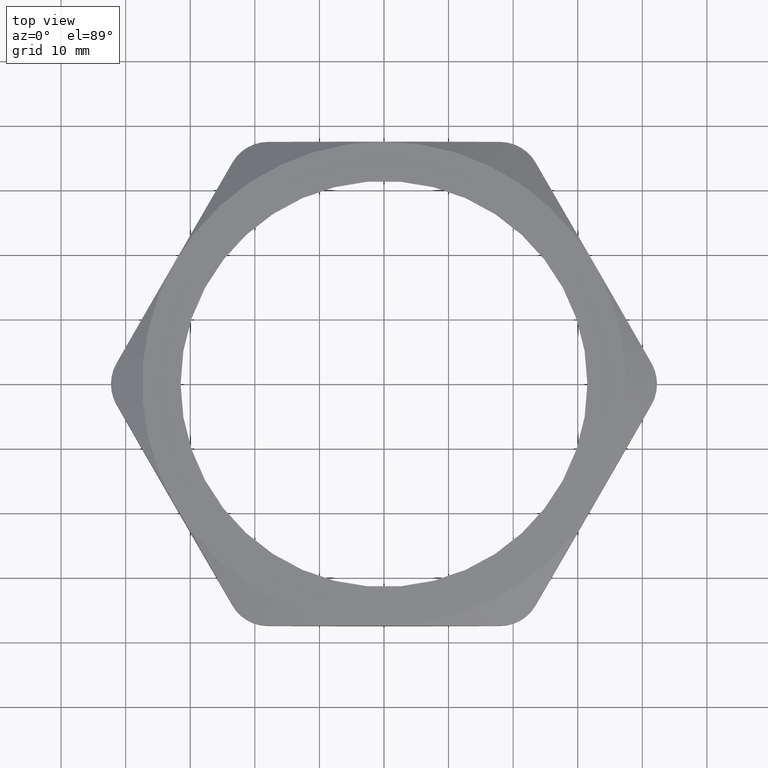
[diagram: clean part render]
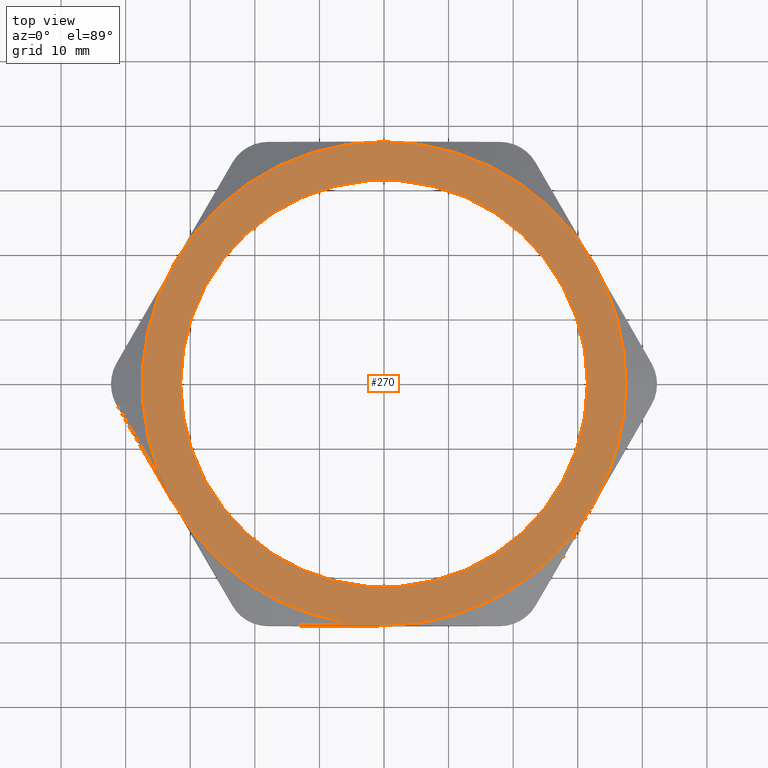
[diagram: same view with one face highlighted and labeled with its STEP entity id]
A machine part, top view. The second image highlights one B-rep face of the part: STEP entity #270.
In plain terms, the highlighted planar face has unit normal (0, 0, -1).
Its self-contained STEP definition (entity closure, byte-faithful):
#153 = VERTEX_POINT ( 'NONE', #1254 ) ;
#179 = VERTEX_POINT ( 'NONE', #1374 ) ;
#190 = VERTEX_POINT ( 'NONE', #1405 ) ;
#201 = VERTEX_POINT ( 'NONE', #1429 ) ;
#215 = VERTEX_POINT ( 'NONE', #1438 ) ;
#255 = ORIENTED_EDGE ( 'NONE', *, *, #256, .T. ) ;
#256 = EDGE_CURVE ( 'NONE', #201, #190, #1610, .T. ) ;
#257 = ORIENTED_EDGE ( 'NONE', *, *, #258, .T. ) ;
#258 = EDGE_CURVE ( 'NONE', #190, #179, #1601, .T. ) ;
#259 = ORIENTED_EDGE ( 'NONE', *, *, #260, .T. ) ;
#260 = EDGE_CURVE ( 'NONE', #179, #762, #1596, .T. ) ;
#261 = ORIENTED_EDGE ( 'NONE', *, *, #761, .T. ) ;
#262 = ORIENTED_EDGE ( 'NONE', *, *, #263, .T. ) ;
#263 = EDGE_CURVE ( 'NONE', #763, #215, #1591, .T. ) ;
#270 = ADVANCED_FACE ( 'NONE', ( #1636, #1635 ), #1634, .F. ) ;
#271 = EDGE_LOOP ( 'NONE', ( #272, #273 ) ) ;
#272 = ORIENTED_EDGE ( 'NONE', *, *, #654, .F. ) ;
#273 = ORIENTED_EDGE ( 'NONE', *, *, #274, .F. ) ;
#274 = EDGE_CURVE ( 'NONE', #650, #646, #1629, .T. ) ;
#275 = EDGE_LOOP ( 'NONE', ( #276, #278, #255, #257, #259, #261, #262 ) ) ;
#276 = ORIENTED_EDGE ( 'NONE', *, *, #277, .T. ) ;
#277 = EDGE_CURVE ( 'NONE', #215, #153, #1624, .T. ) ;
#278 = ORIENTED_EDGE ( 'NONE', *, *, #279, .T. ) ;
#279 = EDGE_CURVE ( 'NONE', #153, #201, #1619, .T. ) ;
#646 = VERTEX_POINT ( 'NONE', #2226 ) ;
#650 = VERTEX_POINT ( 'NONE', #2280 ) ;
#654 = EDGE_CURVE ( 'NONE', #646, #650, #2277, .T. ) ;
#761 = EDGE_CURVE ( 'NONE', #762, #763, #2478, .T. ) ;
#762 = VERTEX_POINT ( 'NONE', #2473 ) ;
#763 = VERTEX_POINT ( 'NONE', #2472 ) ;
#1254 = CARTESIAN_POINT ( 'NONE',  ( -1.277387470582047200, 0.7375000000000001600, 0.3100000000000000000 ) ) ;
#1374 = CARTESIAN_POINT ( 'NONE',  ( 1.277387470582046700, -0.7374999999999996000, 0.3100000000000000000 ) ) ;
#1405 = CARTESIAN_POINT ( 'NONE',  ( 0.0000000000000000000, -1.474999999999999900, 0.3100000000000000000 ) ) ;
#1429 = CARTESIAN_POINT ( 'NONE',  ( -1.277387470582047200, -0.7374999999999998200, 0.3100000000000000000 ) ) ;
#1438 = CARTESIAN_POINT ( 'NONE',  ( 0.0000000000000000000, 1.474999999999999900, 0.3100000000000000000 ) ) ;
#1587 = DIRECTION ( 'NONE',  ( 1.000000000000000000, 0.0000000000000000000, 0.0000000000000000000 ) ) ;
#1588 = DIRECTION ( 'NONE',  ( 0.0000000000000000000, 0.0000000000000000000, 1.000000000000000000 ) ) ;
#1589 = CARTESIAN_POINT ( 'NONE',  ( 0.0000000000000000000, 0.0000000000000000000, 0.3100000000000000000 ) ) ;
#1590 = AXIS2_PLACEMENT_3D ( 'NONE', #1589, #1588, #1587 ) ;
#1591 = CIRCLE ( 'NONE', #1590, 1.474999999999999900 ) ;
#1592 = DIRECTION ( 'NONE',  ( 1.000000000000000000, 0.0000000000000000000, 0.0000000000000000000 ) ) ;
#1593 = DIRECTION ( 'NONE',  ( 0.0000000000000000000, 0.0000000000000000000, 1.000000000000000000 ) ) ;
#1594 = CARTESIAN_POINT ( 'NONE',  ( 0.0000000000000000000, 0.0000000000000000000, 0.3100000000000000000 ) ) ;
#1595 = AXIS2_PLACEMENT_3D ( 'NONE', #1594, #1593, #1592 ) ;
#1596 = CIRCLE ( 'NONE', #1595, 1.474999999999999900 ) ;
#1597 = DIRECTION ( 'NONE',  ( 1.000000000000000000, 0.0000000000000000000, 0.0000000000000000000 ) ) ;
#1598 = DIRECTION ( 'NONE',  ( 0.0000000000000000000, 0.0000000000000000000, 1.000000000000000000 ) ) ;
#1599 = CARTESIAN_POINT ( 'NONE',  ( 0.0000000000000000000, 0.0000000000000000000, 0.3100000000000000000 ) ) ;
#1600 = AXIS2_PLACEMENT_3D ( 'NONE', #1599, #1598, #1597 ) ;
#1601 = CIRCLE ( 'NONE', #1600, 1.474999999999999900 ) ;
#1602 = DIRECTION ( 'NONE',  ( 1.000000000000000000, 0.0000000000000000000, 0.0000000000000000000 ) ) ;
#1603 = DIRECTION ( 'NONE',  ( 0.0000000000000000000, 0.0000000000000000000, 1.000000000000000000 ) ) ;
#1604 = CARTESIAN_POINT ( 'NONE',  ( 0.0000000000000000000, 0.0000000000000000000, 0.3100000000000000000 ) ) ;
#1605 = AXIS2_PLACEMENT_3D ( 'NONE', #1604, #1603, #1602 ) ;
#1610 = CIRCLE ( 'NONE', #1605, 1.474999999999999900 ) ;
#1615 = DIRECTION ( 'NONE',  ( 1.000000000000000000, 0.0000000000000000000, 0.0000000000000000000 ) ) ;
#1616 = DIRECTION ( 'NONE',  ( 0.0000000000000000000, 0.0000000000000000000, 1.000000000000000000 ) ) ;
#1617 = CARTESIAN_POINT ( 'NONE',  ( 0.0000000000000000000, 0.0000000000000000000, 0.3100000000000000000 ) ) ;
#1618 = AXIS2_PLACEMENT_3D ( 'NONE', #1617, #1616, #1615 ) ;
#1619 = CIRCLE ( 'NONE', #1618, 1.474999999999999900 ) ;
#1620 = DIRECTION ( 'NONE',  ( 1.000000000000000000, 0.0000000000000000000, 0.0000000000000000000 ) ) ;
#1621 = DIRECTION ( 'NONE',  ( 0.0000000000000000000, 0.0000000000000000000, 1.000000000000000000 ) ) ;
#1622 = CARTESIAN_POINT ( 'NONE',  ( 0.0000000000000000000, 0.0000000000000000000, 0.3100000000000000000 ) ) ;
#1623 = AXIS2_PLACEMENT_3D ( 'NONE', #1622, #1621, #1620 ) ;
#1624 = CIRCLE ( 'NONE', #1623, 1.474999999999999900 ) ;
#1625 = DIRECTION ( 'NONE',  ( 1.000000000000000000, 0.0000000000000000000, 0.0000000000000000000 ) ) ;
#1626 = DIRECTION ( 'NONE',  ( 0.0000000000000000000, 0.0000000000000000000, 1.000000000000000000 ) ) ;
#1627 = CARTESIAN_POINT ( 'NONE',  ( 0.0000000000000000000, 0.0000000000000000000, 0.3100000000000000000 ) ) ;
#1628 = AXIS2_PLACEMENT_3D ( 'NONE', #1627, #1626, #1625 ) ;
#1629 = CIRCLE ( 'NONE', #1628, 1.240000000000000000 ) ;
#1630 = DIRECTION ( 'NONE',  ( -1.000000000000000000, 0.0000000000000000000, 0.0000000000000000000 ) ) ;
#1631 = DIRECTION ( 'NONE',  ( 0.0000000000000000000, 0.0000000000000000000, -1.000000000000000000 ) ) ;
#1632 = CARTESIAN_POINT ( 'NONE',  ( -0.8515916470546977000, 1.474999999999999900, 0.3100000000000000000 ) ) ;
#1633 = AXIS2_PLACEMENT_3D ( 'NONE', #1632, #1631, #1630 ) ;
#1634 = PLANE ( 'NONE',  #1633 ) ;
#1635 = FACE_OUTER_BOUND ( 'NONE', #275, .T. ) ;
#1636 = FACE_BOUND ( 'NONE', #271, .T. ) ;
#2226 = CARTESIAN_POINT ( 'NONE',  ( -1.240000000000000000, 0.0000000000000000000, 0.3100000000000000000 ) ) ;
#2269 = DIRECTION ( 'NONE',  ( 1.000000000000000000, 0.0000000000000000000, 0.0000000000000000000 ) ) ;
#2270 = DIRECTION ( 'NONE',  ( 0.0000000000000000000, 0.0000000000000000000, 1.000000000000000000 ) ) ;
#2271 = CARTESIAN_POINT ( 'NONE',  ( 0.0000000000000000000, 0.0000000000000000000, 0.3100000000000000000 ) ) ;
#2272 = AXIS2_PLACEMENT_3D ( 'NONE', #2271, #2270, #2269 ) ;
#2277 = CIRCLE ( 'NONE', #2272, 1.240000000000000000 ) ;
#2280 = CARTESIAN_POINT ( 'NONE',  ( 1.240000000000000000, 1.530808498934191600E-016, 0.3100000000000000000 ) ) ;
#2472 = CARTESIAN_POINT ( 'NONE',  ( 1.277387470582047600, 0.7374999999999998200, 0.3100000000000000000 ) ) ;
#2473 = CARTESIAN_POINT ( 'NONE',  ( 1.474999999999999900, 0.0000000000000000000, 0.3100000000000000000 ) ) ;
#2474 = DIRECTION ( 'NONE',  ( 1.000000000000000000, 0.0000000000000000000, 0.0000000000000000000 ) ) ;
#2475 = DIRECTION ( 'NONE',  ( 0.0000000000000000000, 0.0000000000000000000, 1.000000000000000000 ) ) ;
#2476 = CARTESIAN_POINT ( 'NONE',  ( 0.0000000000000000000, 0.0000000000000000000, 0.3100000000000000000 ) ) ;
#2477 = AXIS2_PLACEMENT_3D ( 'NONE', #2476, #2475, #2474 ) ;
#2478 = CIRCLE ( 'NONE', #2477, 1.474999999999999900 ) ;